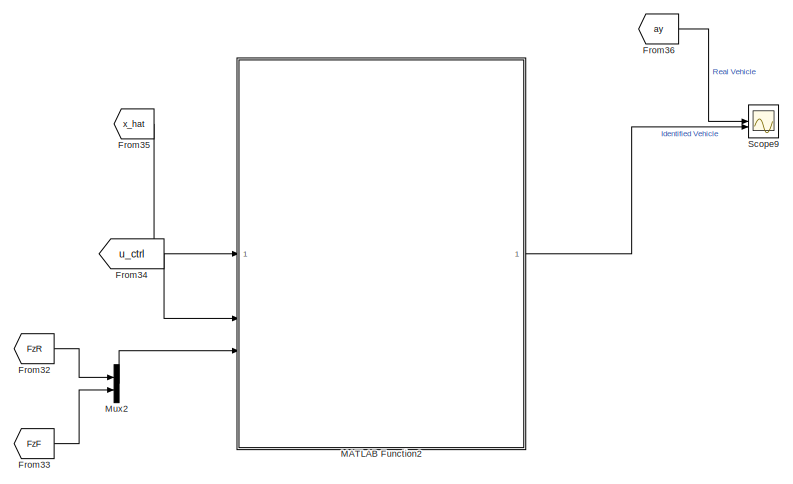
[diagram: root canvas - part 1/8, top center region]
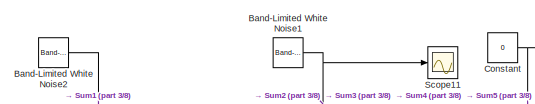
[diagram: root canvas - part 2/8, top right region]
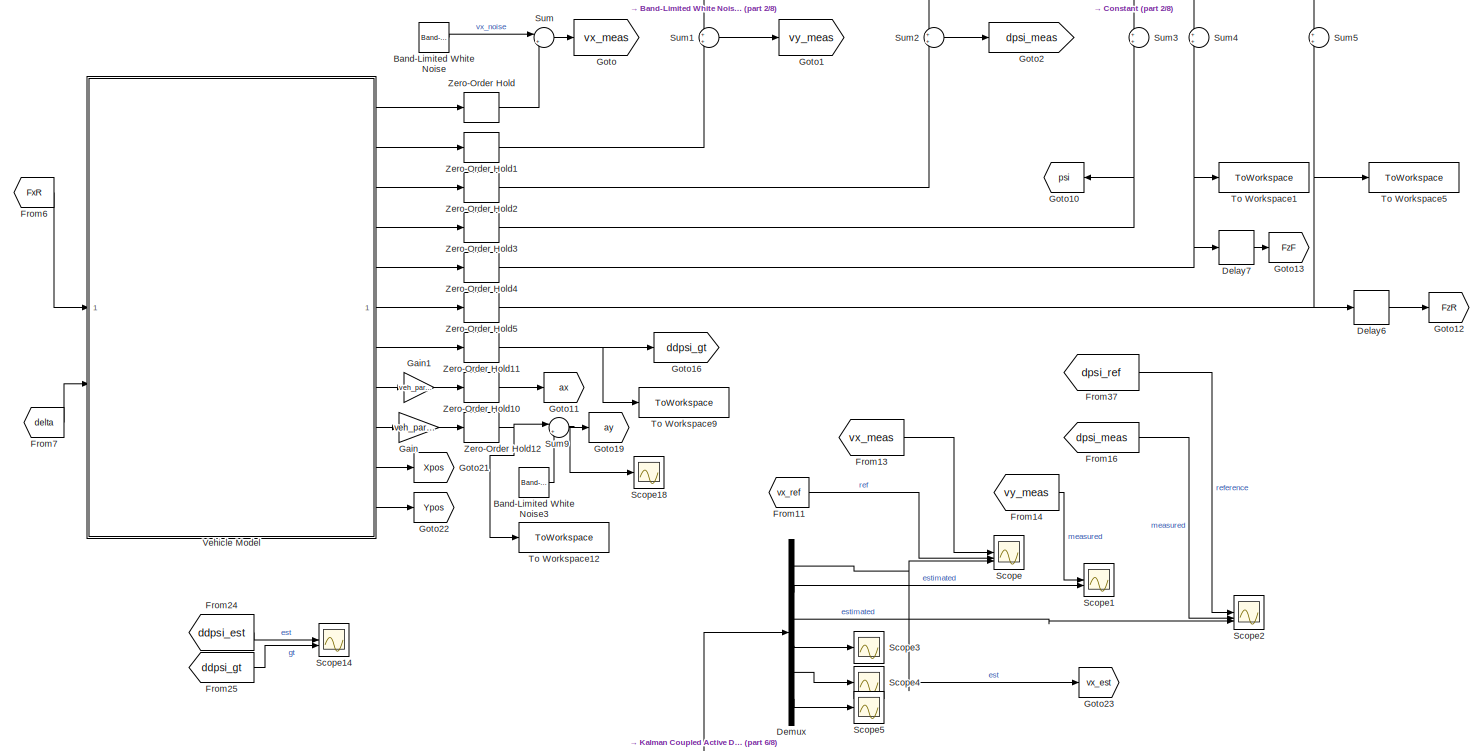
[diagram: root canvas - part 3/8, middle right region]
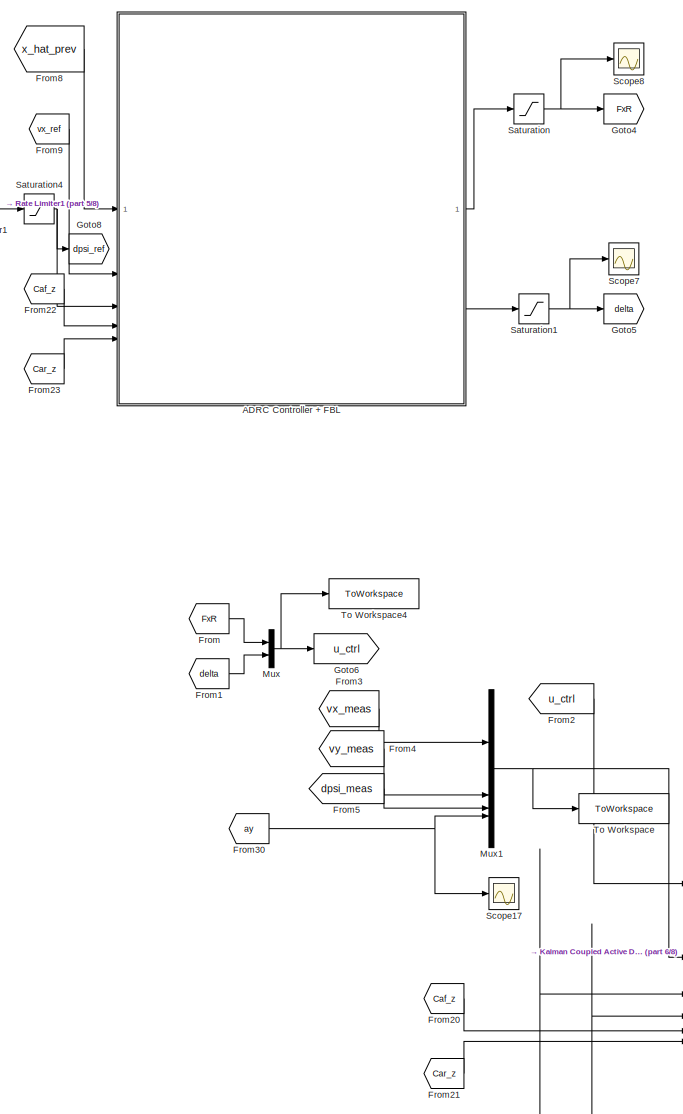
[diagram: root canvas - part 4/8, central region]
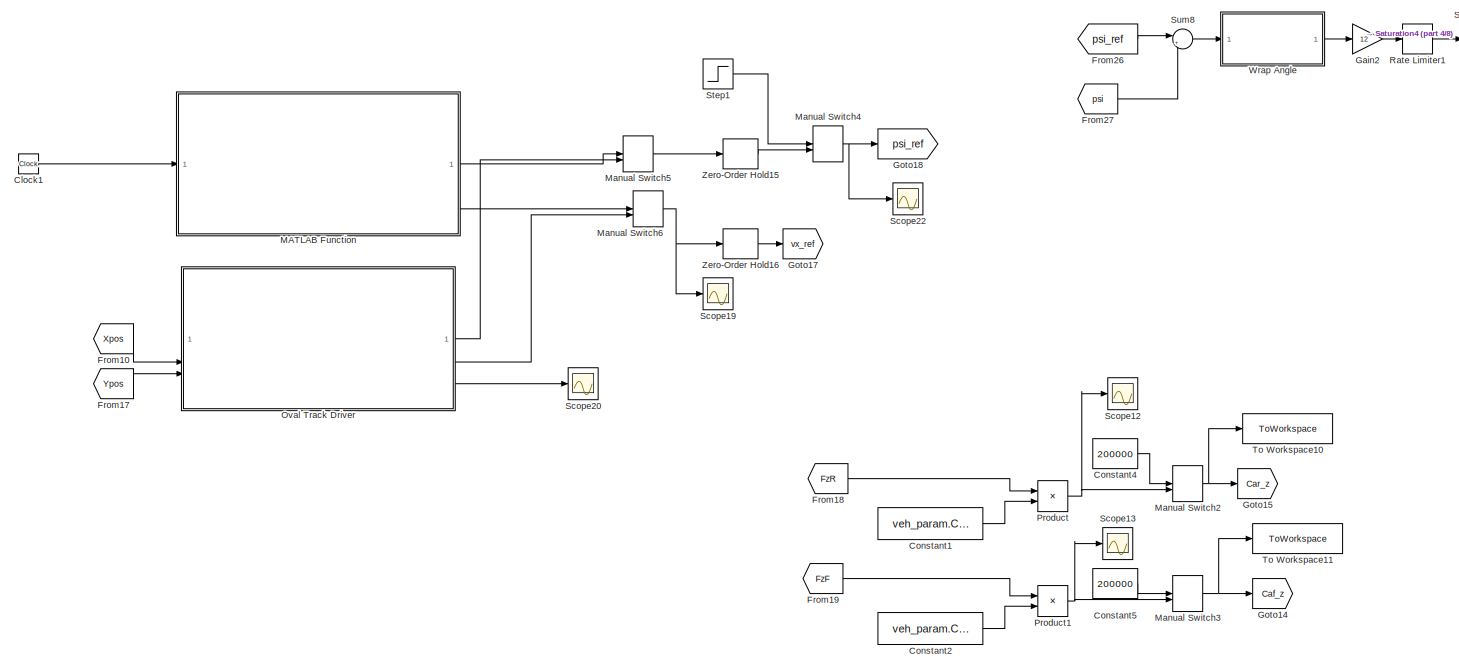
[diagram: root canvas - part 5/8, middle left region]
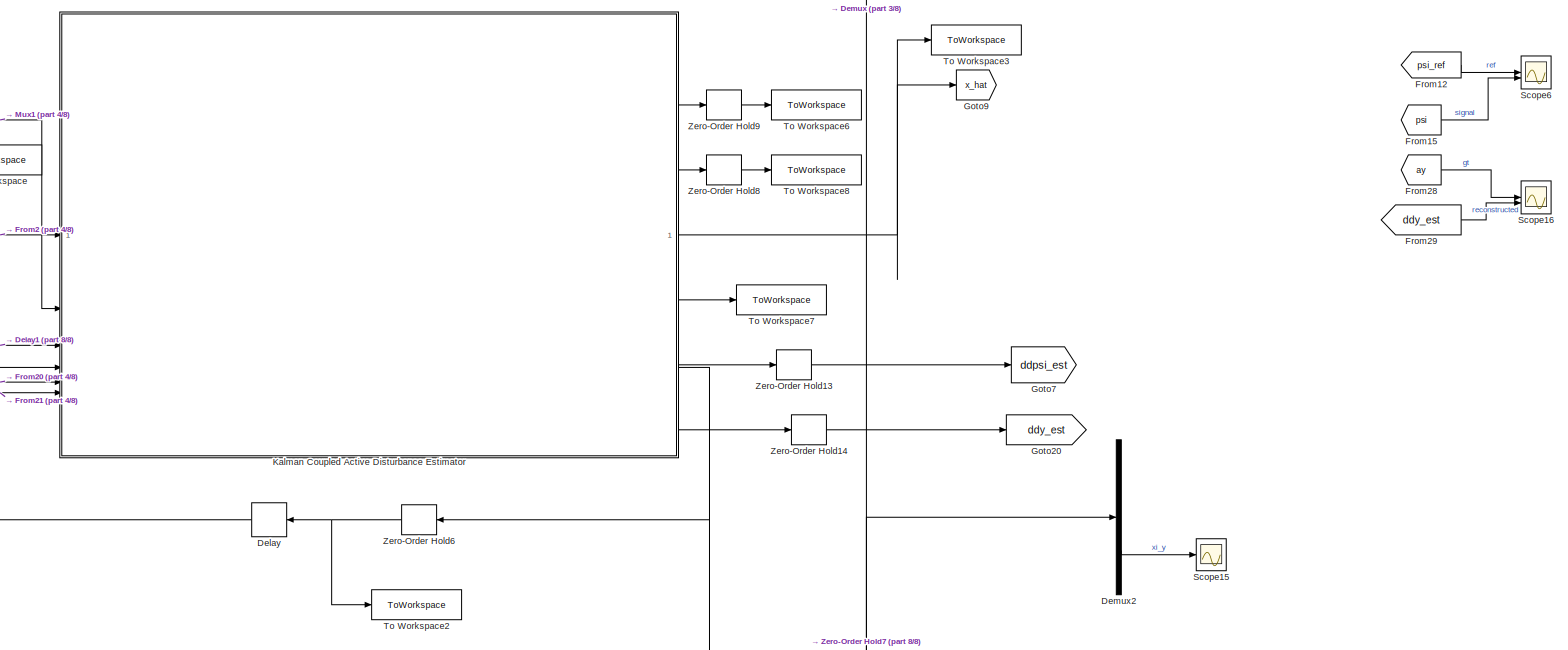
[diagram: root canvas - part 6/8, bottom right region]
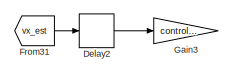
[diagram: root canvas - part 7/8, bottom left region]
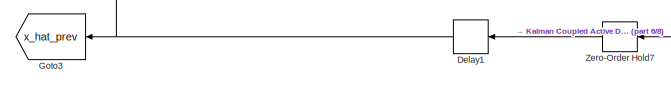
[diagram: root canvas - part 8/8, bottom center region]
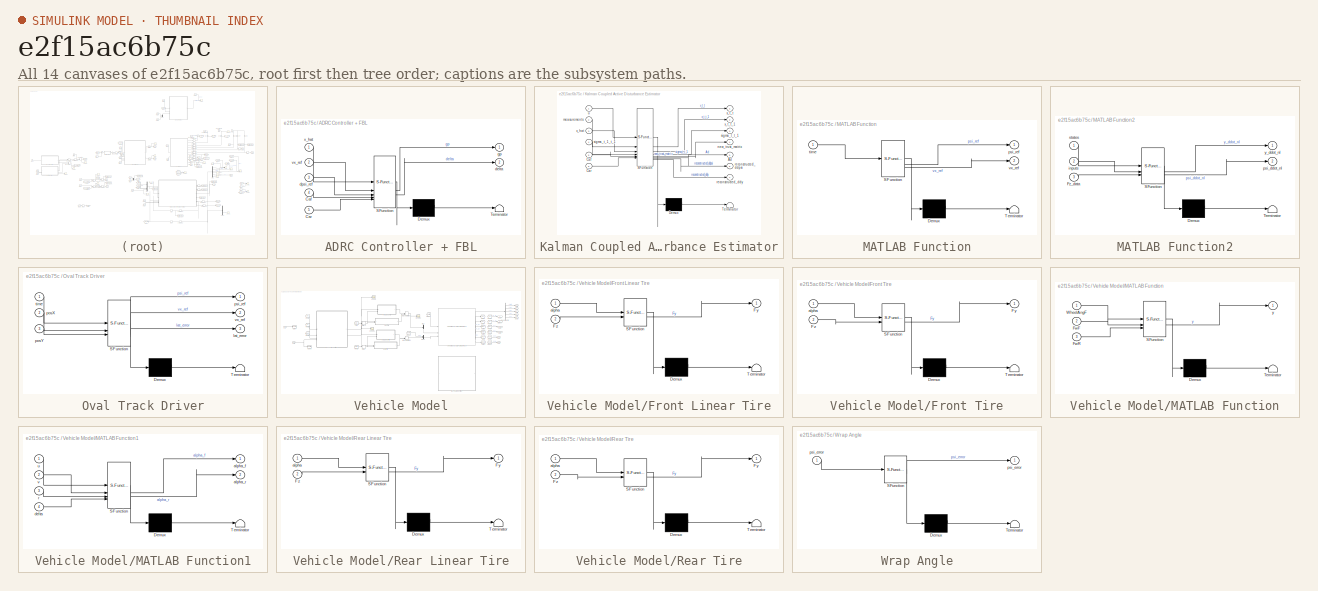
[diagram: thumbnail index - all 14 canvases of the model, root first then tree order]
MODEL slx_e2f15ac6b75c
KIND model
CONFIG AbsTol = auto
CONFIG EnableMultiTasking = off
CONFIG FixedStep = 0.01
CONFIG MaxStep = auto
CONFIG MinStep = auto
CONFIG RelTol = 1e-3
CONFIG SampleTimeConstraint = Unconstrained
CONFIG SolverName = ode4
CONFIG StartTime = 0.0
CONFIG StopTime = 145
BLOCK [SubSystem] ADRC Controller + FBL
  ErrorFcn = Stateflow.Translate.translate
  PermitHierarchicalResolution = ExplicitOnly
  SFBlockType = MATLAB Function
  TreatAsAtomicUnit = on
BLOCK [Demux] ADRC Controller + FBL/ Demux 
  Outputs = 1
BLOCK [S-Function] ADRC Controller + FBL/ SFunction 
  EnableBusSupport = on
  FunctionName = sf_sfun
  Parameters = control_param,veh_param
  PortCounts = [5 3]
  SFcnIsStateOwnerBlock = off
  SFunctionDeploymentMode = off
  Tag = Stateflow S-Function 5
BLOCK [Terminator] ADRC Controller + FBL/ Terminator 
BLOCK [Inport] ADRC Controller + FBL/Caf
  Port = 4
BLOCK [Inport] ADRC Controller + FBL/Car
  Port = 5
BLOCK [Outport] ADRC Controller + FBL/delta
  Port = 2
BLOCK [Inport] ADRC Controller + FBL/dpsi_ref
  Port = 3
BLOCK [Outport] ADRC Controller + FBL/gp
BLOCK [Inport] ADRC Controller + FBL/vx_ref
  Port = 2
BLOCK [Inport] ADRC Controller + FBL/x_hat
BLOCK [Reference] Band-Limited White Noise  REF=simulink/Sources/Band-Limited
White Noise
  SourceBlock = simulink/Sources/Band-Limited\nWhite Noise
  SourceType = Band-Limited White Noise.
BLOCK [Reference] Band-Limited White Noise1  REF=simulink/Sources/Band-Limited
White Noise
  SourceBlock = simulink/Sources/Band-Limited\nWhite Noise
  SourceType = Band-Limited White Noise.
BLOCK [Reference] Band-Limited White Noise2  REF=simulink/Sources/Band-Limited
White Noise
  SourceBlock = simulink/Sources/Band-Limited\nWhite Noise
  SourceType = Band-Limited White Noise.
BLOCK [Reference] Band-Limited White Noise3  REF=simulink/Sources/Band-Limited
White Noise
  SourceBlock = simulink/Sources/Band-Limited\nWhite Noise
  SourceType = Band-Limited White Noise.
BLOCK [Clock] Clock1
BLOCK [Constant] Constant
  Value = 0
BLOCK [Constant] Constant1
  SampleTime = control_param.T
  Value = veh_param.Car
BLOCK [Constant] Constant2
  SampleTime = control_param.T
  Value = veh_param.Caf
BLOCK [Constant] Constant4
  Value = 200000
BLOCK [Constant] Constant5
  Value = 200000
BLOCK [Delay] Delay
  DelayLength = 1
  InitialCondition = eye(6)*0
  InputPortMap = u0
  SampleTime = control_param.T
BLOCK [Delay] Delay1
  DelayLength = 1
  InitialCondition = veh_param.initial_states
  InputPortMap = u0
  SampleTime = control_param.T
BLOCK [Delay] Delay2
  Commented = on
  DelayLength = 1
  InputPortMap = u0
  SampleTime = control_param.T
BLOCK [Delay] Delay6
  DelayLength = 1
  InitialCondition = veh_param.initial_states(1)
  InputPortMap = u0
  SampleTime = control_param.T
BLOCK [Delay] Delay7
  DelayLength = 1
  InitialCondition = veh_param.initial_states(1)
  InputPortMap = u0
  SampleTime = control_param.T
BLOCK [Demux] Demux
  Outputs = 6
BLOCK [Demux] Demux2
  Outputs = 6
BLOCK [From] From
  GotoTag = FxR
BLOCK [From] From1
  GotoTag = delta
BLOCK [From] From10
  GotoTag = Xpos
BLOCK [From] From11
  GotoTag = vx_ref
BLOCK [From] From12
  GotoTag = psi_ref
BLOCK [From] From13
  GotoTag = vx_meas
BLOCK [From] From14
  GotoTag = vy_meas
BLOCK [From] From15
  GotoTag = psi
BLOCK [From] From16
  GotoTag = dpsi_meas
BLOCK [From] From17
  GotoTag = Ypos
BLOCK [From] From18
  GotoTag = FzR
BLOCK [From] From19
  GotoTag = FzF
BLOCK [From] From2
  GotoTag = u_ctrl
BLOCK [From] From20
  GotoTag = Caf_z
BLOCK [From] From21
  GotoTag = Car_z
BLOCK [From] From22
  GotoTag = Caf_z
BLOCK [From] From23
  GotoTag = Car_z
BLOCK [From] From24
  GotoTag = ddpsi_est
BLOCK [From] From25
  GotoTag = ddpsi_gt
BLOCK [From] From26
  GotoTag = psi_ref
BLOCK [From] From27
  GotoTag = psi
BLOCK [From] From28
  GotoTag = ay
BLOCK [From] From29
  GotoTag = ddy_est
BLOCK [From] From3
  GotoTag = vx_meas
BLOCK [From] From30
  GotoTag = ay
BLOCK [From] From31
  Commented = on
  GotoTag = vx_est
BLOCK [From] From32
  Commented = on
  GotoTag = FzR
BLOCK [From] From33
  Commented = on
  GotoTag = FzF
BLOCK [From] From34
  Commented = on
  GotoTag = u_ctrl
BLOCK [From] From35
  Commented = on
  GotoTag = x_hat
BLOCK [From] From36
  Commented = on
  GotoTag = ay
BLOCK [From] From37
  GotoTag = dpsi_ref
BLOCK [From] From4
  GotoTag = vy_meas
BLOCK [From] From5
  GotoTag = dpsi_meas
BLOCK [From] From6
  GotoTag = FxR
BLOCK [From] From7
  GotoTag = delta
BLOCK [From] From8
  GotoTag = x_hat_prev
BLOCK [From] From9
  GotoTag = vx_ref
BLOCK [Gain] Gain
  Gain = veh_param.g
BLOCK [Gain] Gain1
  Gain = veh_param.g
BLOCK [Gain] Gain2
  Gain = 12
BLOCK [Gain] Gain3
  Commented = on
  Gain = control_param.lookahead_distance
BLOCK [Goto] Goto
  GotoTag = vx_meas
BLOCK [Goto] Goto1
  GotoTag = vy_meas
BLOCK [Goto] Goto10
  GotoTag = psi
BLOCK [Goto] Goto11
  GotoTag = ax
BLOCK [Goto] Goto12
  GotoTag = FzR
BLOCK [Goto] Goto13
  GotoTag = FzF
BLOCK [Goto] Goto14
  GotoTag = Caf_z
BLOCK [Goto] Goto15
  GotoTag = Car_z
BLOCK [Goto] Goto16
  GotoTag = ddpsi_gt
BLOCK [Goto] Goto17
  GotoTag = vx_ref
BLOCK [Goto] Goto18
  GotoTag = psi_ref
BLOCK [Goto] Goto19
  GotoTag = ay
BLOCK [Goto] Goto2
  GotoTag = dpsi_meas
BLOCK [Goto] Goto20
  GotoTag = ddy_est
BLOCK [Goto] Goto21
  GotoTag = Xpos
BLOCK [Goto] Goto22
  GotoTag = Ypos
BLOCK [Goto] Goto23
  GotoTag = vx_est
BLOCK [Goto] Goto3
  GotoTag = x_hat_prev
BLOCK [Goto] Goto4
  GotoTag = FxR
BLOCK [Goto] Goto5
  GotoTag = delta
BLOCK [Goto] Goto6
  GotoTag = u_ctrl
BLOCK [Goto] Goto7
  GotoTag = ddpsi_est
BLOCK [Goto] Goto8
  GotoTag = dpsi_ref
BLOCK [Goto] Goto9
  GotoTag = x_hat
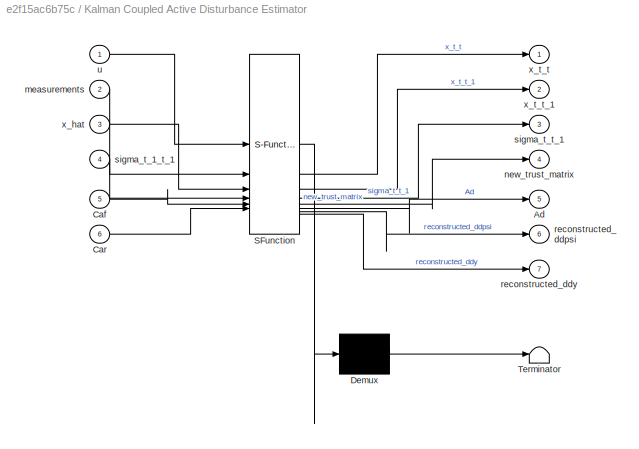
BLOCK [SubSystem] Kalman Coupled Active Disturbance Estimator
  ErrorFcn = Stateflow.Translate.translate
  PermitHierarchicalResolution = ExplicitOnly
  SFBlockType = MATLAB Function
  TreatAsAtomicUnit = on
BLOCK [Demux] Kalman Coupled Active Disturbance Estimator/ Demux 
  Outputs = 1
BLOCK [S-Function] Kalman Coupled Active Disturbance Estimator/ SFunction 
  EnableBusSupport = on
  FunctionName = sf_sfun
  Parameters = control_param,veh_param
  PortCounts = [6 8]
  SFcnIsStateOwnerBlock = off
  SFunctionDeploymentMode = off
  Tag = Stateflow S-Function 7
BLOCK [Terminator] Kalman Coupled Active Disturbance Estimator/ Terminator 
BLOCK [Outport] Kalman Coupled Active Disturbance Estimator/Ad
  Port = 5
BLOCK [Inport] Kalman Coupled Active Disturbance Estimator/Caf
  Port = 5
BLOCK [Inport] Kalman Coupled Active Disturbance Estimator/Car
  Port = 6
BLOCK [Inport] Kalman Coupled Active Disturbance Estimator/measurements
  Port = 2
BLOCK [Outport] Kalman Coupled Active Disturbance Estimator/new_trust_matrix
  Port = 4
BLOCK [Outport] Kalman Coupled Active Disturbance Estimator/reconstructed_ddpsi
  Port = 6
BLOCK [Outport] Kalman Coupled Active Disturbance Estimator/reconstructed_ddy
  Port = 7
BLOCK [Inport] Kalman Coupled Active Disturbance Estimator/sigma_t_1_t_1
  Port = 4
BLOCK [Outport] Kalman Coupled Active Disturbance Estimator/sigma_t_t_1
  Port = 3
BLOCK [Inport] Kalman Coupled Active Disturbance Estimator/u
BLOCK [Inport] Kalman Coupled Active Disturbance Estimator/x_hat
  Port = 3
BLOCK [Outport] Kalman Coupled Active Disturbance Estimator/x_t_t
BLOCK [Outport] Kalman Coupled Active Disturbance Estimator/x_t_t_1
  Port = 2
BLOCK [SubSystem] MATLAB Function
  ErrorFcn = Stateflow.Translate.translate
  PermitHierarchicalResolution = ExplicitOnly
  SFBlockType = MATLAB Function
  TreatAsAtomicUnit = on
BLOCK [Demux] MATLAB Function/ Demux 
  Outputs = 1
BLOCK [S-Function] MATLAB Function/ SFunction 
  EnableBusSupport = on
  FunctionName = sf_sfun
  PortCounts = [1 3]
  SFcnIsStateOwnerBlock = off
  SFunctionDeploymentMode = off
  Tag = Stateflow S-Function 2
BLOCK [Terminator] MATLAB Function/ Terminator 
BLOCK [Outport] MATLAB Function/psi_ref
BLOCK [Inport] MATLAB Function/time
BLOCK [Outport] MATLAB Function/vx_ref
  Port = 2
BLOCK [SubSystem] MATLAB Function2
  Commented = on
  ErrorFcn = Stateflow.Translate.translate
  PermitHierarchicalResolution = ExplicitOnly
  SFBlockType = MATLAB Function
  TreatAsAtomicUnit = on
BLOCK [Demux] MATLAB Function2/ Demux 
  Outputs = 1
BLOCK [S-Function] MATLAB Function2/ SFunction 
  EnableBusSupport = on
  FunctionName = sf_sfun
  Parameters = theta_test,veh_param
  PortCounts = [3 3]
  SFcnIsStateOwnerBlock = off
  SFunctionDeploymentMode = off
  Tag = Stateflow S-Function 1
BLOCK [Terminator] MATLAB Function2/ Terminator 
BLOCK [Inport] MATLAB Function2/Fz_data
  Port = 3
BLOCK [Inport] MATLAB Function2/inputs
  Port = 2
BLOCK [Outport] MATLAB Function2/psi_ddot_nl
  Port = 2
BLOCK [Inport] MATLAB Function2/states
BLOCK [Outport] MATLAB Function2/y_ddot_nl
BLOCK [ManualSwitch] Manual Switch2
  CurrentSetting = 0
BLOCK [ManualSwitch] Manual Switch3
  CurrentSetting = 0
BLOCK [ManualSwitch] Manual Switch4
  CurrentSetting = 0
BLOCK [ManualSwitch] Manual Switch5
  CurrentSetting = 0
BLOCK [ManualSwitch] Manual Switch6
  CurrentSetting = 0
BLOCK [Mux] Mux
  DisplayOption = bar
  Inputs = 2
BLOCK [Mux] Mux1
  DisplayOption = bar
BLOCK [Mux] Mux2
  Commented = on
  DisplayOption = bar
  Inputs = 2
BLOCK [SubSystem] Oval Track Driver
  ErrorFcn = Stateflow.Translate.translate
  PermitHierarchicalResolution = ExplicitOnly
  SFBlockType = MATLAB Function
  TreatAsAtomicUnit = on
BLOCK [Demux] Oval Track Driver/ Demux 
  Outputs = 1
BLOCK [S-Function] Oval Track Driver/ SFunction 
  EnableBusSupport = on
  FunctionName = sf_sfun
  Parameters = track
  PortCounts = [3 4]
  SFcnIsStateOwnerBlock = off
  SFunctionDeploymentMode = off
  Tag = Stateflow S-Function 6
BLOCK [Terminator] Oval Track Driver/ Terminator 
BLOCK [Outport] Oval Track Driver/lat_error
  Port = 3
BLOCK [Inport] Oval Track Driver/posX
  Port = 2
BLOCK [Inport] Oval Track Driver/posY
  Port = 3
BLOCK [Outport] Oval Track Driver/psi_ref
BLOCK [Inport] Oval Track Driver/time
BLOCK [Outport] Oval Track Driver/vx_ref
  Port = 2
BLOCK [Product] Product
BLOCK [Product] Product1
BLOCK [RateLimiter] Rate Limiter1
  FallingSlewLimit = -1.0
  RisingSlewLimit = 1.0
  SampleTimeMode = inherited
BLOCK [Saturate] Saturation
  LowerLimit = -4000
  UpperLimit = 2000
BLOCK [Saturate] Saturation1
  LowerLimit = -0.262
  UpperLimit = 0.262
BLOCK [Saturate] Saturation4
  LowerLimit = -0.3
  UpperLimit = 0.3
BLOCK [Scope] Scope
  Floating = off
  NumInputPorts = 3
  ScopeSpecificationString = Simulink.scopes.TimeScopeBlockCfg('CurrentConfiguration', extmgr.ConfigurationSet(extmgr.Configuration('Core','General UI',true,'FigureColor',[1 1 1]),extmgr.Configuration('Core','Source UI',true),extmgr.Configuration('Sources','WiredSimulink',true),extmgr.Configuration('Visuals','Time Domain',true,'SerializedDisplays',{struct('MinYLimReal','-4.41405','MaxYLimReal','89.37934','YLabelReal','','MinY...<+1578ch>
BLOCK [Scope] Scope1
  Floating = off
  NumInputPorts = 2
  ScopeSpecificationString = Simulink.scopes.TimeScopeBlockCfg('CurrentConfiguration', extmgr.ConfigurationSet(extmgr.Configuration('Core','General UI',true),extmgr.Configuration('Core','Source UI',true),extmgr.Configuration('Sources','WiredSimulink',true,'DataLoggingVariableName','ScopeData1'),extmgr.Configuration('Visuals','Time Domain',true,'SerializedDisplays',{struct('MinYLimReal','-0.62337','MaxYLimReal','0.58648','YLab...<+1583ch>
BLOCK [Scope] Scope11
  Floating = off
  NumInputPorts = 1
  ScopeSpecificationString = Simulink.scopes.TimeScopeBlockCfg('CurrentConfiguration', extmgr.ConfigurationSet(extmgr.Configuration('Core','General UI',true),extmgr.Configuration('Core','Source UI',true),extmgr.Configuration('Sources','WiredSimulink',true,'DataLoggingVariableName','ScopeData6'),extmgr.Configuration('Visuals','Time Domain',true,'SerializedDisplays',{struct('MinYLimReal','-0.01705','MaxYLimReal','0.01595','YLab...<+1501ch>
BLOCK [Scope] Scope12
  Floating = off
  NumInputPorts = 1
  ScopeSpecificationString = Simulink.scopes.TimeScopeBlockCfg('CurrentConfiguration', extmgr.ConfigurationSet(extmgr.Configuration('Core','General UI',true),extmgr.Configuration('Core','Source UI',true),extmgr.Configuration('Sources','WiredSimulink',true,'DataLoggingVariableName','ScopeData7'),extmgr.Configuration('Visuals','Time Domain',true,'SerializedDisplays',{struct('MinYLimReal','-14617.76947','MaxYLimReal','134709.925...<+1537ch>
BLOCK [Scope] Scope13
  Floating = off
  NumInputPorts = 1
  ScopeSpecificationString = Simulink.scopes.TimeScopeBlockCfg('CurrentConfiguration', extmgr.ConfigurationSet(extmgr.Configuration('Core','General UI',true),extmgr.Configuration('Core','Source UI',true),extmgr.Configuration('Sources','WiredSimulink',true,'DataLoggingVariableName','ScopeData8'),extmgr.Configuration('Visuals','Time Domain',true,'SerializedDisplays',{struct('MinYLimReal','117114.57508','MaxYLimReal','151127.324...<+1563ch>
BLOCK [Scope] Scope14
  Floating = off
  NumInputPorts = 2
  ScopeSpecificationString = Simulink.scopes.TimeScopeBlockCfg('CurrentConfiguration', extmgr.ConfigurationSet(extmgr.Configuration('Core','General UI',true),extmgr.Configuration('Core','Source UI',true),extmgr.Configuration('Sources','WiredSimulink',true,'DataLoggingVariableName','ScopeData9'),extmgr.Configuration('Visuals','Time Domain',true,'SerializedDisplays',{struct('MinYLimReal','-0.19154','MaxYLimReal','0.13588','YLab...<+1526ch>
BLOCK [Scope] Scope15
  Floating = off
  NumInputPorts = 1
  ScopeSpecificationString = Simulink.scopes.TimeScopeBlockCfg('CurrentConfiguration', extmgr.ConfigurationSet(extmgr.Configuration('Core','General UI',true),extmgr.Configuration('Core','Source UI',true),extmgr.Configuration('Sources','WiredSimulink',true,'DataLoggingVariableName','ScopeData1'),extmgr.Configuration('Visuals','Time Domain',true,'SerializedDisplays',{struct('MinYLimReal','-10954.24138','MaxYLimReal','9093.53824...<+1552ch>
BLOCK [Scope] Scope16
  Floating = off
  NumInputPorts = 2
  ScopeSpecificationString = Simulink.scopes.TimeScopeBlockCfg('CurrentConfiguration', extmgr.ConfigurationSet(extmgr.Configuration('Core','General UI',true,'FigureColor',[1 1 1]),extmgr.Configuration('Core','Source UI',true),extmgr.Configuration('Sources','WiredSimulink',true,'DataLoggingVariableName','ScopeData3'),extmgr.Configuration('Visuals','Time Domain',true,'SerializedDisplays',{struct('MinYLimReal','-3.52068','MaxYLi...<+1590ch>
BLOCK [Scope] Scope17
  Floating = off
  NumInputPorts = 1
  ScopeSpecificationString = Simulink.scopes.TimeScopeBlockCfg('CurrentConfiguration', extmgr.ConfigurationSet(extmgr.Configuration('Core','General UI',true),extmgr.Configuration('Core','Source UI',true),extmgr.Configuration('Sources','WiredSimulink',true,'DataLoggingVariableName','ScopeData3'),extmgr.Configuration('Visuals','Time Domain',true,'SerializedDisplays',{struct('MinYLimReal','-8.16055','MaxYLimReal','4.89962','YLab...<+1481ch>
BLOCK [Scope] Scope18
  Floating = off
  NumInputPorts = 1
  ScopeSpecificationString = Simulink.scopes.TimeScopeBlockCfg('CurrentConfiguration', extmgr.ConfigurationSet(extmgr.Configuration('Core','General UI',true),extmgr.Configuration('Core','Source UI',true),extmgr.Configuration('Sources','WiredSimulink',true,'DataLoggingVariableName','ScopeData4'),extmgr.Configuration('Visuals','Time Domain',true,'SerializedDisplays',{struct('MinYLimReal','-8.16055','MaxYLimReal','4.89962','YLab...<+1480ch>
BLOCK [Scope] Scope19
  Floating = off
  NumInputPorts = 1
  ScopeSpecificationString = Simulink.scopes.TimeScopeBlockCfg('CurrentConfiguration', extmgr.ConfigurationSet(extmgr.Configuration('Core','General UI',true),extmgr.Configuration('Core','Source UI',true),extmgr.Configuration('Sources','WiredSimulink',true,'DataLoggingVariableName','ScopeData2'),extmgr.Configuration('Visuals','Time Domain',true,'SerializedDisplays',{struct('MinYLimReal','-6.375','MaxYLimReal','67.375','YLabelR...<+1482ch>
BLOCK [Scope] Scope2
  Floating = off
  NumInputPorts = 3
  ScopeSpecificationString = Simulink.scopes.TimeScopeBlockCfg('CurrentConfiguration', extmgr.ConfigurationSet(extmgr.Configuration('Core','General UI',true,'FigureColor',[1 1 1]),extmgr.Configuration('Core','Source UI',true),extmgr.Configuration('Sources','WiredSimulink',true,'DataLoggingVariableName','ScopeData2'),extmgr.Configuration('Visuals','Time Domain',true,'SerializedDisplays',{struct('MinYLimReal','-0.30486','MaxYLi...<+1734ch>
BLOCK [Scope] Scope20
  Floating = off
  NumInputPorts = 1
  ScopeSpecificationString = Simulink.scopes.TimeScopeBlockCfg('CurrentConfiguration', extmgr.ConfigurationSet(extmgr.Configuration('Core','General UI',true),extmgr.Configuration('Core','Source UI',true),extmgr.Configuration('Sources','WiredSimulink',true,'DataLoggingVariableName','ScopeData1'),extmgr.Configuration('Visuals','Time Domain',true,'SerializedDisplays',{struct('MinYLimReal','-0.84345','MaxYLimReal','2.31594','YLab...<+1548ch>
BLOCK [Scope] Scope22
  Floating = off
  NumInputPorts = 1
  ScopeSpecificationString = Simulink.scopes.TimeScopeBlockCfg('CurrentConfiguration', extmgr.ConfigurationSet(extmgr.Configuration('Core','General UI',true),extmgr.Configuration('Core','Source UI',true),extmgr.Configuration('Sources','WiredSimulink',true,'DataLoggingVariableName','ScopeData11'),extmgr.Configuration('Visuals','Time Domain',true,'SerializedDisplays',{struct('MinYLimReal','3.13873','MaxYLimReal','3.14103','YLab...<+1533ch>
BLOCK [Scope] Scope3
  Floating = off
  NumInputPorts = 1
  ScopeSpecificationString = Simulink.scopes.TimeScopeBlockCfg('CurrentConfiguration', extmgr.ConfigurationSet(extmgr.Configuration('Core','General UI',true),extmgr.Configuration('Core','Source UI',true),extmgr.Configuration('Sources','WiredSimulink',true,'DataLoggingVariableName','ScopeData3'),extmgr.Configuration('Visuals','Time Domain',true,'SerializedDisplays',{struct('MinYLimReal','-164.25985','MaxYLimReal','19.14016','Y...<+1496ch>
BLOCK [Scope] Scope4
  Floating = off
  NumInputPorts = 1
  ScopeSpecificationString = Simulink.scopes.TimeScopeBlockCfg('CurrentConfiguration', extmgr.ConfigurationSet(extmgr.Configuration('Core','General UI',true),extmgr.Configuration('Core','Source UI',true),extmgr.Configuration('Sources','WiredSimulink',true,'DataLoggingVariableName','ScopeData4'),extmgr.Configuration('Visuals','Time Domain',true,'SerializedDisplays',{struct('MinYLimReal','-35707.25352','MaxYLimReal','25820.3428...<+1513ch>
BLOCK [Scope] Scope5
  Floating = off
  NumInputPorts = 1
  ScopeSpecificationString = Simulink.scopes.TimeScopeBlockCfg('CurrentConfiguration', extmgr.ConfigurationSet(extmgr.Configuration('Core','General UI',true),extmgr.Configuration('Core','Source UI',true),extmgr.Configuration('Sources','WiredSimulink',true,'DataLoggingVariableName','ScopeData5'),extmgr.Configuration('Visuals','Time Domain',true,'SerializedDisplays',{struct('MinYLimReal','-366.37663','MaxYLimReal','358.60083','...<+1523ch>
BLOCK [Scope] Scope6
  Floating = off
  NumInputPorts = 2
  ScopeSpecificationString = Simulink.scopes.TimeScopeBlockCfg('CurrentConfiguration', extmgr.ConfigurationSet(extmgr.Configuration('Core','General UI',true,'FigureColor',[1 1 1]),extmgr.Configuration('Core','Source UI',true),extmgr.Configuration('Sources','WiredSimulink',true,'DataLoggingVariableName','ScopeData1'),extmgr.Configuration('Visuals','Time Domain',true,'SerializedDisplays',{struct('MinYLimReal','-0.4148','MaxYLim...<+1564ch>
BLOCK [Scope] Scope7
  Floating = off
  NumInputPorts = 1
  ScopeSpecificationString = Simulink.scopes.TimeScopeBlockCfg('CurrentConfiguration', extmgr.ConfigurationSet(extmgr.Configuration('Core','General UI',true,'FigureColor',[1 1 1]),extmgr.Configuration('Core','Source UI',true),extmgr.Configuration('Sources','WiredSimulink',true,'DataLoggingVariableName','ScopeData2'),extmgr.Configuration('Visuals','Time Domain',true,'SerializedDisplays',{struct('MinYLimReal','-0.08631','MaxYLi...<+1588ch>
BLOCK [Scope] Scope8
  Floating = off
  NumInputPorts = 1
  ScopeSpecificationString = Simulink.scopes.TimeScopeBlockCfg('CurrentConfiguration', extmgr.ConfigurationSet(extmgr.Configuration('Core','General UI',true),extmgr.Configuration('Core','Source UI',true),extmgr.Configuration('Sources','WiredSimulink',true,'DataLoggingVariableName','ScopeData3'),extmgr.Configuration('Visuals','Time Domain',true,'SerializedDisplays',{struct('MinYLimReal','-1884.55708','MaxYLimReal','2431.61745'...<+1582ch>
BLOCK [Scope] Scope9
  Commented = on
  Floating = off
  NumInputPorts = 2
  ScopeSpecificationString = Simulink.scopes.TimeScopeBlockCfg('CurrentConfiguration', extmgr.ConfigurationSet(extmgr.Configuration('Core','General UI',true,'FigureColor',[1 1 1]),extmgr.Configuration('Core','Source UI',true),extmgr.Configuration('Sources','WiredSimulink',true,'DataLoggingVariableName','ScopeData1'),extmgr.Configuration('Visuals','Time Domain',true,'SerializedDisplays',{struct('MinYLimReal','-10.87485','MaxYL...<+1726ch>
BLOCK [Step] Step1
  After = 0.05
  SampleTime = control_param.T
  Time = 0
BLOCK [Sum] Sum
  Inputs = |++
BLOCK [Sum] Sum1
BLOCK [Sum] Sum2
BLOCK [Sum] Sum3
BLOCK [Sum] Sum4
BLOCK [Sum] Sum5
BLOCK [Sum] Sum8
  Inputs = |+-
BLOCK [Sum] Sum9
  Inputs = |++
BLOCK [ToWorkspace] To Workspace
  FixptAsFi = on
  MaxDataPoints = inf
  SampleTime = control_param.T
  SaveFormat = Timeseries
  VariableName = measurements
BLOCK [ToWorkspace] To Workspace1
  FixptAsFi = on
  MaxDataPoints = inf
  SampleTime = control_param.T
  SaveFormat = Timeseries
  VariableName = FzF
BLOCK [ToWorkspace] To Workspace10
  FixptAsFi = on
  MaxDataPoints = inf
  SampleTime = control_param.T
  SaveFormat = Timeseries
  VariableName = Car
BLOCK [ToWorkspace] To Workspace11
  FixptAsFi = on
  MaxDataPoints = inf
  SampleTime = control_param.T
  SaveFormat = Timeseries
  VariableName = Caf
BLOCK [ToWorkspace] To Workspace12
  FixptAsFi = on
  MaxDataPoints = inf
  SampleTime = control_param.T
  SaveFormat = Timeseries
  VariableName = gt_ay
BLOCK [ToWorkspace] To Workspace2
  FixptAsFi = on
  MaxDataPoints = inf
  SampleTime = 0.01
  Save2DSignal = 2-D array (concatenate along first dimension)
  SaveFormat = Timeseries
  VariableName = sigma_t_t
BLOCK [ToWorkspace] To Workspace3
  FixptAsFi = on
  MaxDataPoints = inf
  SampleTime = control_param.T
  SaveFormat = Timeseries
  VariableName = x_t_t
BLOCK [ToWorkspace] To Workspace4
  FixptAsFi = on
  MaxDataPoints = inf
  SampleTime = control_param.T
  SaveFormat = Timeseries
  VariableName = u
BLOCK [ToWorkspace] To Workspace5
  FixptAsFi = on
  MaxDataPoints = inf
  SampleTime = control_param.T
  SaveFormat = Timeseries
  VariableName = FzR
BLOCK [ToWorkspace] To Workspace6
  FixptAsFi = on
  MaxDataPoints = inf
  SampleTime = 0.01
  SaveFormat = Timeseries
  VariableName = x_t_t_1
BLOCK [ToWorkspace] To Workspace7
  FixptAsFi = on
  MaxDataPoints = inf
  SampleTime = control_param.T
  SaveFormat = Timeseries
  VariableName = Ad
BLOCK [ToWorkspace] To Workspace8
  FixptAsFi = on
  MaxDataPoints = inf
  SampleTime = 0.01
  Save2DSignal = 2-D array (concatenate along first dimension)
  SaveFormat = Timeseries
  VariableName = sigma_t_t_1
BLOCK [ToWorkspace] To Workspace9
  FixptAsFi = on
  MaxDataPoints = inf
  SampleTime = control_param.T
  SaveFormat = Timeseries
  VariableName = gt_ddpsi
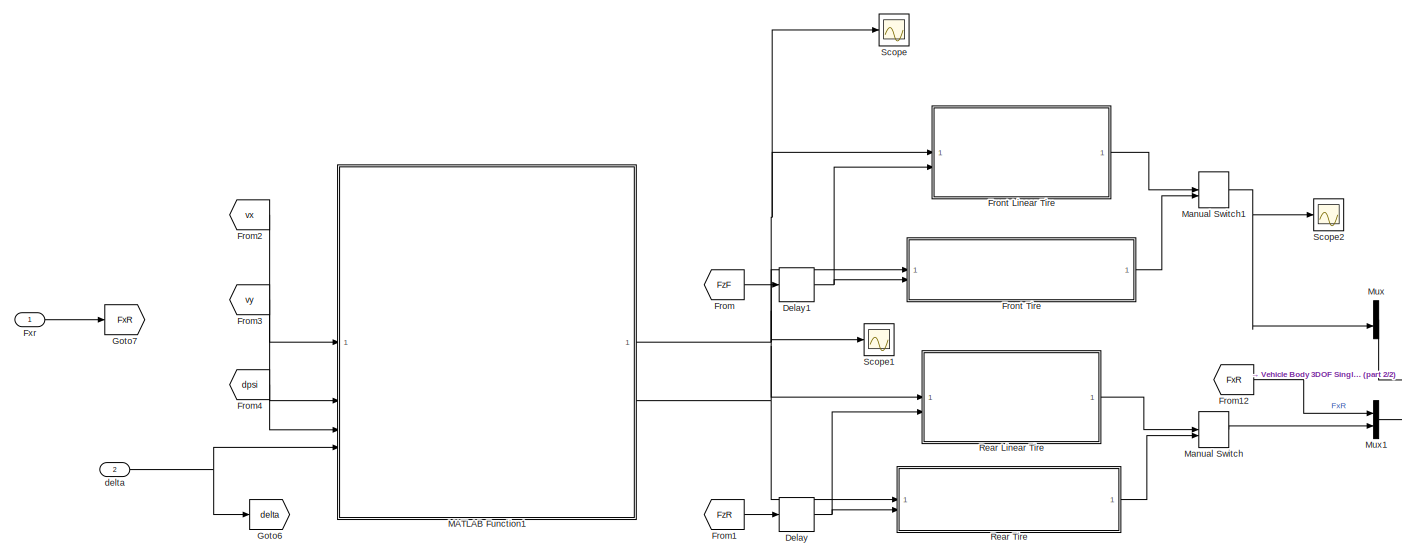
[diagram: Vehicle Model - part 1/2, top left region]
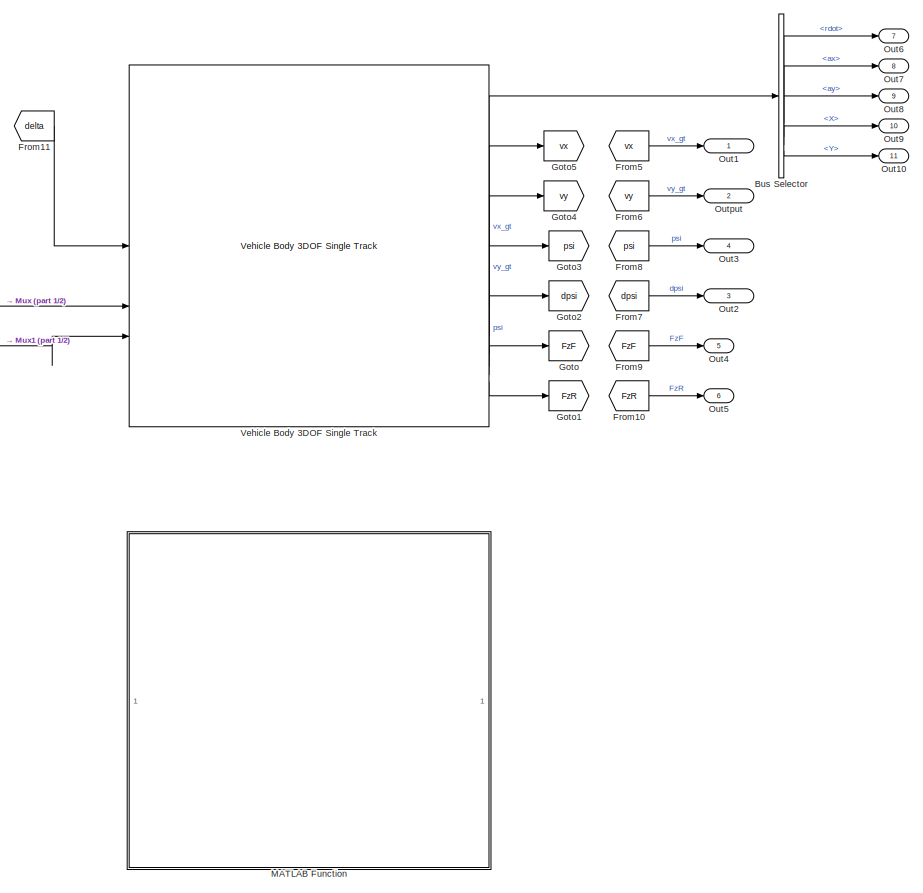
[diagram: Vehicle Model - part 2/2, right side, full height]
BLOCK [SubSystem] Vehicle Model
BLOCK [BusSelector] Vehicle Model/Bus Selector
  OutputSignals = BdyFrm.Cg.AngAcc.rdot,BdyFrm.Cg.Acc.ax,BdyFrm.Cg.Acc.ay,InertFrm.Cg.Disp.X,InertFrm.Cg.Disp.Y
BLOCK [Delay] Vehicle Model/Delay
  DelayLength = 1
  InitialCondition = veh_param.m*veh_param.g / 2
  InputPortMap = u0
  SampleTime = control_param.T
BLOCK [Delay] Vehicle Model/Delay1
  DelayLength = 1
  InitialCondition = veh_param.m*veh_param.g / 2
  InputPortMap = u0
  SampleTime = control_param.T
BLOCK [From] Vehicle Model/From
  GotoTag = FzF
BLOCK [From] Vehicle Model/From1
  GotoTag = FzR
BLOCK [From] Vehicle Model/From10
  GotoTag = FzR
BLOCK [From] Vehicle Model/From11
  GotoTag = delta
BLOCK [From] Vehicle Model/From12
  GotoTag = FxR
BLOCK [From] Vehicle Model/From2
  GotoTag = vx
BLOCK [From] Vehicle Model/From3
  GotoTag = vy
BLOCK [From] Vehicle Model/From4
  GotoTag = dpsi
BLOCK [From] Vehicle Model/From5
  GotoTag = vx
BLOCK [From] Vehicle Model/From6
  GotoTag = vy
BLOCK [From] Vehicle Model/From7
  GotoTag = dpsi
BLOCK [From] Vehicle Model/From8
  GotoTag = psi
BLOCK [From] Vehicle Model/From9
  GotoTag = FzF
BLOCK [SubSystem] Vehicle Model/Front Linear Tire
  ErrorFcn = Stateflow.Translate.translate
  PermitHierarchicalResolution = ExplicitOnly
  SFBlockType = MATLAB Function
  TreatAsAtomicUnit = on
BLOCK [Demux] Vehicle Model/Front Linear Tire/ Demux 
  Outputs = 1
BLOCK [S-Function] Vehicle Model/Front Linear Tire/ SFunction 
  EnableBusSupport = on
  FunctionName = sf_sfun
  Parameters = veh_param
  PortCounts = [2 2]
  SFcnIsStateOwnerBlock = off
  SFunctionDeploymentMode = off
  Tag = Stateflow S-Function 8
BLOCK [Terminator] Vehicle Model/Front Linear Tire/ Terminator 
BLOCK [Outport] Vehicle Model/Front Linear Tire/Fy
BLOCK [Inport] Vehicle Model/Front Linear Tire/Fz
  Port = 2
BLOCK [Inport] Vehicle Model/Front Linear Tire/alpha
BLOCK [SubSystem] Vehicle Model/Front Tire
  ErrorFcn = Stateflow.Translate.translate
  PermitHierarchicalResolution = ExplicitOnly
  SFBlockType = MATLAB Function
  TreatAsAtomicUnit = on
BLOCK [Demux] Vehicle Model/Front Tire/ Demux 
  Outputs = 1
BLOCK [S-Function] Vehicle Model/Front Tire/ SFunction 
  EnableBusSupport = on
  FunctionName = sf_sfun
  Parameters = veh_param
  PortCounts = [2 2]
  SFcnIsStateOwnerBlock = off
  SFunctionDeploymentMode = off
  Tag = Stateflow S-Function 11
BLOCK [Terminator] Vehicle Model/Front Tire/ Terminator 
BLOCK [Outport] Vehicle Model/Front Tire/Fy
BLOCK [Inport] Vehicle Model/Front Tire/Fz
  Port = 2
BLOCK [Inport] Vehicle Model/Front Tire/alpha
BLOCK [Inport] Vehicle Model/Fxr
  IconDisplay = Signal name
BLOCK [Goto] Vehicle Model/Goto
  GotoTag = FzF
BLOCK [Goto] Vehicle Model/Goto1
  GotoTag = FzR
BLOCK [Goto] Vehicle Model/Goto2
  GotoTag = dpsi
BLOCK [Goto] Vehicle Model/Goto3
  GotoTag = psi
BLOCK [Goto] Vehicle Model/Goto4
  GotoTag = vy
BLOCK [Goto] Vehicle Model/Goto5
  GotoTag = vx
BLOCK [Goto] Vehicle Model/Goto6
  GotoTag = delta
BLOCK [Goto] Vehicle Model/Goto7
  GotoTag = FxR
BLOCK [SubSystem] Vehicle Model/MATLAB Function
  Commented = on
  ErrorFcn = Stateflow.Translate.translate
  PermitHierarchicalResolution = ExplicitOnly
  SFBlockType = MATLAB Function
  TreatAsAtomicUnit = on
BLOCK [Demux] Vehicle Model/MATLAB Function/ Demux 
  Outputs = 1
BLOCK [S-Function] Vehicle Model/MATLAB Function/ SFunction 
  EnableBusSupport = on
  FunctionName = sf_sfun
  PortCounts = [3 2]
  SFcnIsStateOwnerBlock = off
  SFunctionDeploymentMode = off
  Tag = Stateflow S-Function 3
BLOCK [Terminator] Vehicle Model/MATLAB Function/ Terminator 
BLOCK [Inport] Vehicle Model/MATLAB Function/FwF
  Port = 2
BLOCK [Inport] Vehicle Model/MATLAB Function/FwR
  Port = 3
BLOCK [Inport] Vehicle Model/MATLAB Function/WheelAngF
BLOCK [Outport] Vehicle Model/MATLAB Function/y
BLOCK [SubSystem] Vehicle Model/MATLAB Function1
  ErrorFcn = Stateflow.Translate.translate
  PermitHierarchicalResolution = ExplicitOnly
  SFBlockType = MATLAB Function
  TreatAsAtomicUnit = on
BLOCK [Demux] Vehicle Model/MATLAB Function1/ Demux 
  Outputs = 1
BLOCK [S-Function] Vehicle Model/MATLAB Function1/ SFunction 
  EnableBusSupport = on
  FunctionName = sf_sfun
  Parameters = veh_param
  PortCounts = [4 3]
  SFcnIsStateOwnerBlock = off
  SFunctionDeploymentMode = off
  Tag = Stateflow S-Function 12
BLOCK [Terminator] Vehicle Model/MATLAB Function1/ Terminator 
BLOCK [Outport] Vehicle Model/MATLAB Function1/alpha_f
BLOCK [Outport] Vehicle Model/MATLAB Function1/alpha_r
  Port = 2
BLOCK [Inport] Vehicle Model/MATLAB Function1/delta
  Port = 4
BLOCK [Inport] Vehicle Model/MATLAB Function1/r
  Port = 3
BLOCK [Inport] Vehicle Model/MATLAB Function1/u
BLOCK [Inport] Vehicle Model/MATLAB Function1/v
  Port = 2
BLOCK [ManualSwitch] Vehicle Model/Manual Switch
  CurrentSetting = 0
BLOCK [ManualSwitch] Vehicle Model/Manual Switch1
  CurrentSetting = 0
BLOCK [Mux] Vehicle Model/Mux
  DisplayOption = bar
  Inputs = 2
BLOCK [Mux] Vehicle Model/Mux1
  DisplayOption = bar
  Inputs = 2
BLOCK [Outport] Vehicle Model/Out1
  IconDisplay = Signal name
BLOCK [Outport] Vehicle Model/Out10
  IconDisplay = Signal name
  Port = 11
BLOCK [Outport] Vehicle Model/Out2
  IconDisplay = Signal name
  Port = 3
BLOCK [Outport] Vehicle Model/Out3
  IconDisplay = Signal name
  Port = 4
BLOCK [Outport] Vehicle Model/Out4
  IconDisplay = Signal name
  Port = 5
BLOCK [Outport] Vehicle Model/Out5
  IconDisplay = Signal name
  Port = 6
BLOCK [Outport] Vehicle Model/Out6
  IconDisplay = Signal name
  Port = 7
BLOCK [Outport] Vehicle Model/Out7
  IconDisplay = Signal name
  Port = 8
BLOCK [Outport] Vehicle Model/Out8
  IconDisplay = Signal name
  Port = 9
BLOCK [Outport] Vehicle Model/Out9
  IconDisplay = Signal name
  Port = 10
BLOCK [Outport] Vehicle Model/Output
  IconDisplay = Signal name
  Port = 2
BLOCK [SubSystem] Vehicle Model/Rear Linear Tire
  ErrorFcn = Stateflow.Translate.translate
  PermitHierarchicalResolution = ExplicitOnly
  SFBlockType = MATLAB Function
  TreatAsAtomicUnit = on
BLOCK [Demux] Vehicle Model/Rear Linear Tire/ Demux 
  Outputs = 1
BLOCK [S-Function] Vehicle Model/Rear Linear Tire/ SFunction 
  EnableBusSupport = on
  FunctionName = sf_sfun
  Parameters = veh_param
  PortCounts = [2 2]
  SFcnIsStateOwnerBlock = off
  SFunctionDeploymentMode = off
  Tag = Stateflow S-Function 13
BLOCK [Terminator] Vehicle Model/Rear Linear Tire/ Terminator 
BLOCK [Outport] Vehicle Model/Rear Linear Tire/Fy
BLOCK [Inport] Vehicle Model/Rear Linear Tire/Fz
  Port = 2
BLOCK [Inport] Vehicle Model/Rear Linear Tire/alpha
BLOCK [SubSystem] Vehicle Model/Rear Tire
  ErrorFcn = Stateflow.Translate.translate
  PermitHierarchicalResolution = ExplicitOnly
  SFBlockType = MATLAB Function
  TreatAsAtomicUnit = on
BLOCK [Demux] Vehicle Model/Rear Tire/ Demux 
  Outputs = 1
BLOCK [S-Function] Vehicle Model/Rear Tire/ SFunction 
  EnableBusSupport = on
  FunctionName = sf_sfun
  Parameters = veh_param
  PortCounts = [2 2]
  SFcnIsStateOwnerBlock = off
  SFunctionDeploymentMode = off
  Tag = Stateflow S-Function 14
BLOCK [Terminator] Vehicle Model/Rear Tire/ Terminator 
BLOCK [Outport] Vehicle Model/Rear Tire/Fy
BLOCK [Inport] Vehicle Model/Rear Tire/Fz
  Port = 2
BLOCK [Inport] Vehicle Model/Rear Tire/alpha
BLOCK [Scope] Vehicle Model/Scope
  Floating = off
  NumInputPorts = 1
  ScopeSpecificationString = Simulink.scopes.TimeScopeBlockCfg('CurrentConfiguration', extmgr.ConfigurationSet(extmgr.Configuration('Core','General UI',true),extmgr.Configuration('Core','Source UI',true),extmgr.Configuration('Sources','WiredSimulink',true,'DataLoggingVariableName','ScopeData1'),extmgr.Configuration('Visuals','Time Domain',true,'SerializedDisplays',{struct('MinYLimReal','-0.00984','MaxYLimReal','0.00753','YLab...<+1544ch>
BLOCK [Scope] Vehicle Model/Scope1
  Floating = off
  NumInputPorts = 1
  ScopeSpecificationString = Simulink.scopes.TimeScopeBlockCfg('CurrentConfiguration', extmgr.ConfigurationSet(extmgr.Configuration('Core','General UI',true),extmgr.Configuration('Core','Source UI',true),extmgr.Configuration('Sources','WiredSimulink',true,'DataLoggingVariableName','ScopeData2'),extmgr.Configuration('Visuals','Time Domain',true,'SerializedDisplays',{struct('MinYLimReal','-0.01134','MaxYLimReal','0.01128','YLab...<+1501ch>
BLOCK [Scope] Vehicle Model/Scope2
  Floating = off
  NumInputPorts = 1
  ScopeSpecificationString = Simulink.scopes.TimeScopeBlockCfg('CurrentConfiguration', extmgr.ConfigurationSet(extmgr.Configuration('Core','General UI',true),extmgr.Configuration('Core','Source UI',true),extmgr.Configuration('Sources','WiredSimulink',true,'DataLoggingVariableName','ScopeData1'),extmgr.Configuration('Visuals','Time Domain',true,'SerializedDisplays',{struct('MinYLimReal','-1498.31748','MaxYLimReal','1527.73797'...<+1538ch>
BLOCK [Reference] Vehicle Model/Vehicle Body 3DOF Single Track  REF=autolibshared/Vehicle Body 3DOF Single Track
  LibrarySourceBlock = vehdynlibeom/Vehicle Body 3DOF Single Track
  SourceBlock = autolibshared/Vehicle Body 3DOF Single Track
  SourceType = Vehicle Body 3DOF Lateral
BLOCK [Inport] Vehicle Model/delta
  IconDisplay = Signal name
  Port = 2
BLOCK [SubSystem] Wrap Angle
  ErrorFcn = Stateflow.Translate.translate
  PermitHierarchicalResolution = ExplicitOnly
  SFBlockType = MATLAB Function
  TreatAsAtomicUnit = on
BLOCK [Demux] Wrap Angle/ Demux 
  Outputs = 1
BLOCK [S-Function] Wrap Angle/ SFunction 
  EnableBusSupport = on
  FunctionName = sf_sfun
  PortCounts = [1 2]
  SFcnIsStateOwnerBlock = off
  SFunctionDeploymentMode = off
  Tag = Stateflow S-Function 9
BLOCK [Terminator] Wrap Angle/ Terminator 
BLOCK [Outport] Wrap Angle/psi_error
BLOCK [Inport] Wrap Angle/psi_error 
BLOCK [ZeroOrderHold] Zero-Order Hold
  SampleTime = control_param.T
BLOCK [ZeroOrderHold] Zero-Order Hold1
  SampleTime = control_param.T
BLOCK [ZeroOrderHold] Zero-Order Hold10
  SampleTime = control_param.T
BLOCK [ZeroOrderHold] Zero-Order Hold11
  SampleTime = control_param.T
BLOCK [ZeroOrderHold] Zero-Order Hold12
  SampleTime = control_param.T
BLOCK [ZeroOrderHold] Zero-Order Hold13
  SampleTime = control_param.T
BLOCK [ZeroOrderHold] Zero-Order Hold14
  SampleTime = control_param.T
BLOCK [ZeroOrderHold] Zero-Order Hold15
  SampleTime = control_param.T
BLOCK [ZeroOrderHold] Zero-Order Hold16
  SampleTime = control_param.T
BLOCK [ZeroOrderHold] Zero-Order Hold2
  SampleTime = control_param.T
BLOCK [ZeroOrderHold] Zero-Order Hold3
  SampleTime = control_param.T
BLOCK [ZeroOrderHold] Zero-Order Hold4
  SampleTime = control_param.T
BLOCK [ZeroOrderHold] Zero-Order Hold5
  SampleTime = control_param.T
BLOCK [ZeroOrderHold] Zero-Order Hold6
  SampleTime = control_param.T
BLOCK [ZeroOrderHold] Zero-Order Hold7
  SampleTime = control_param.T
BLOCK [ZeroOrderHold] Zero-Order Hold8
  SampleTime = control_param.T
BLOCK [ZeroOrderHold] Zero-Order Hold9
  SampleTime = control_param.T
LINE ADRC Controller + FBL:1 -> Saturation:1
LINE ADRC Controller + FBL:2 -> Saturation1:1
NET Band-Limited White Noise1:1 -> Scope11:1, Sum2:1
LINE Band-Limited White Noise2:1 -> Sum1:1
LINE Band-Limited White Noise3:1 -> Sum9:2
LINE Band-Limited White Noise:1 -> Sum:1
LINE Clock1:1 -> MATLAB Function:1
LINE Constant1:1 -> Product:2
LINE Constant2:1 -> Product1:2
LINE Constant4:1 -> Manual Switch2:1
LINE Constant5:1 -> Manual Switch3:1
NET Constant:1 -> Sum3:1, Sum4:1, Sum5:1
NET Delay1:1 -> Goto3:1, Kalman Coupled Active Disturbance Estimator:3
LINE Delay2:1 -> Gain3:1
LINE Delay6:1 -> Goto12:1
LINE Delay7:1 -> Goto13:1
LINE Delay:1 -> Kalman Coupled Active Disturbance Estimator:4
LINE Demux2:5 -> Scope15:1
NET Demux:1 -> Goto23:1, Scope:3
LINE Demux:2 -> Scope1:2
LINE Demux:3 -> Scope2:3
LINE Demux:4 -> Scope3:1
LINE Demux:5 -> Scope4:1
LINE Demux:6 -> Scope5:1
LINE From10:1 -> Oval Track Driver:2
LINE From11:1 -> Scope:2
LINE From12:1 -> Scope6:1
LINE From13:1 -> Scope:1
LINE From14:1 -> Scope1:1
LINE From15:1 -> Scope6:2
LINE From16:1 -> Scope2:2
LINE From17:1 -> Oval Track Driver:3
LINE From18:1 -> Product:1
LINE From19:1 -> Product1:1
LINE From1:1 -> Mux:2
LINE From20:1 -> Kalman Coupled Active Disturbance Estimator:5
LINE From21:1 -> Kalman Coupled Active Disturbance Estimator:6
LINE From22:1 -> ADRC Controller + FBL:4
LINE From23:1 -> ADRC Controller + FBL:5
LINE From24:1 -> Scope14:1
LINE From25:1 -> Scope14:2
LINE From26:1 -> Sum8:1
LINE From27:1 -> Sum8:2
LINE From28:1 -> Scope16:1
LINE From29:1 -> Scope16:2
LINE From2:1 -> Kalman Coupled Active Disturbance Estimator:1
NET From30:1 -> Mux1:4, Scope17:1
LINE From31:1 -> Delay2:1
LINE From32:1 -> Mux2:1
LINE From33:1 -> Mux2:2
LINE From34:1 -> MATLAB Function2:2
LINE From35:1 -> MATLAB Function2:1
LINE From36:1 -> Scope9:1
LINE From37:1 -> Scope2:1
LINE From3:1 -> Mux1:1
LINE From4:1 -> Mux1:2
LINE From5:1 -> Mux1:3
LINE From6:1 -> Vehicle Model:1
LINE From7:1 -> Vehicle Model:2
LINE From8:1 -> ADRC Controller + FBL:1
LINE From9:1 -> ADRC Controller + FBL:2
LINE From:1 -> Mux:1
LINE Gain1:1 -> Zero-Order Hold10:1
LINE Gain2:1 -> Rate Limiter1:1
LINE Gain:1 -> Zero-Order Hold12:1
NET Kalman Coupled Active Disturbance Estimator:1 -> Demux2:1, Demux:1, Goto9:1, To Workspace3:1, Zero-Order Hold7:1
LINE Kalman Coupled Active Disturbance Estimator:2 -> Zero-Order Hold9:1
LINE Kalman Coupled Active Disturbance Estimator:3 -> Zero-Order Hold8:1
LINE Kalman Coupled Active Disturbance Estimator:4 -> Zero-Order Hold6:1
LINE Kalman Coupled Active Disturbance Estimator:5 -> To Workspace7:1
LINE Kalman Coupled Active Disturbance Estimator:6 -> Zero-Order Hold13:1
LINE Kalman Coupled Active Disturbance Estimator:7 -> Zero-Order Hold14:1
LINE MATLAB Function2:1 -> Scope9:2
LINE MATLAB Function:1 -> Manual Switch5:1
LINE MATLAB Function:2 -> Manual Switch6:1
NET Manual Switch2:1 -> Goto15:1, To Workspace10:1
NET Manual Switch3:1 -> Goto14:1, To Workspace11:1
NET Manual Switch4:1 -> Goto18:1, Scope22:1
LINE Manual Switch5:1 -> Zero-Order Hold15:1
NET Manual Switch6:1 -> Scope19:1, Zero-Order Hold16:1
NET Mux1:1 -> Kalman Coupled Active Disturbance Estimator:2, To Workspace:1
LINE Mux2:1 -> MATLAB Function2:3
NET Mux:1 -> Goto6:1, To Workspace4:1
LINE Oval Track Driver:1 -> Manual Switch5:2
LINE Oval Track Driver:2 -> Manual Switch6:2
LINE Oval Track Driver:3 -> Scope20:1
NET Product1:1 -> Manual Switch3:2, Scope13:1
NET Product:1 -> Manual Switch2:2, Scope12:1
LINE Rate Limiter1:1 -> Saturation4:1
NET Saturation1:1 -> Goto5:1, Scope7:1
NET Saturation4:1 -> ADRC Controller + FBL:3, Goto8:1
NET Saturation:1 -> Goto4:1, Scope8:1
LINE Step1:1 -> Manual Switch4:1
LINE Sum1:1 -> Goto1:1
LINE Sum2:1 -> Goto2:1
LINE Sum8:1 -> Wrap Angle:1
NET Sum9:1 -> Goto19:1, Scope18:1
LINE Sum:1 -> Goto:1
LINE Vehicle Model/Bus Selector:1 -> Vehicle Model/Out6:1
LINE Vehicle Model/Bus Selector:2 -> Vehicle Model/Out7:1
LINE Vehicle Model/Bus Selector:3 -> Vehicle Model/Out8:1
LINE Vehicle Model/Bus Selector:4 -> Vehicle Model/Out9:1
LINE Vehicle Model/Bus Selector:5 -> Vehicle Model/Out10:1
NET Vehicle Model/Delay1:1 -> Vehicle Model/Front Linear Tire:2, Vehicle Model/Front Tire:2
NET Vehicle Model/Delay:1 -> Vehicle Model/Rear Linear Tire:2, Vehicle Model/Rear Tire:2
LINE Vehicle Model/From10:1 -> Vehicle Model/Out5:1
LINE Vehicle Model/From11:1 -> Vehicle Model/Vehicle Body 3DOF Single Track:1
LINE Vehicle Model/From12:1 -> Vehicle Model/Mux1:1
LINE Vehicle Model/From1:1 -> Vehicle Model/Delay:1
LINE Vehicle Model/From2:1 -> Vehicle Model/MATLAB Function1:1
LINE Vehicle Model/From3:1 -> Vehicle Model/MATLAB Function1:2
LINE Vehicle Model/From4:1 -> Vehicle Model/MATLAB Function1:3
LINE Vehicle Model/From5:1 -> Vehicle Model/Out1:1
LINE Vehicle Model/From6:1 -> Vehicle Model/Output:1
LINE Vehicle Model/From7:1 -> Vehicle Model/Out2:1
LINE Vehicle Model/From8:1 -> Vehicle Model/Out3:1
LINE Vehicle Model/From9:1 -> Vehicle Model/Out4:1
LINE Vehicle Model/From:1 -> Vehicle Model/Delay1:1
LINE Vehicle Model/Front Linear Tire:1 -> Vehicle Model/Manual Switch1:1
LINE Vehicle Model/Front Tire:1 -> Vehicle Model/Manual Switch1:2
LINE Vehicle Model/Fxr:1 -> Vehicle Model/Goto7:1
NET Vehicle Model/MATLAB Function1:1 -> Vehicle Model/Front Linear Tire:1, Vehicle Model/Front Tire:1, Vehicle Model/Scope:1
NET Vehicle Model/MATLAB Function1:2 -> Vehicle Model/Rear Linear Tire:1, Vehicle Model/Rear Tire:1, Vehicle Model/Scope1:1
NET Vehicle Model/Manual Switch1:1 -> Vehicle Model/Mux:2, Vehicle Model/Scope2:1
LINE Vehicle Model/Manual Switch:1 -> Vehicle Model/Mux1:2
LINE Vehicle Model/Mux1:1 -> Vehicle Model/Vehicle Body 3DOF Single Track:3
LINE Vehicle Model/Mux:1 -> Vehicle Model/Vehicle Body 3DOF Single Track:2
LINE Vehicle Model/Rear Linear Tire:1 -> Vehicle Model/Manual Switch:1
LINE Vehicle Model/Rear Tire:1 -> Vehicle Model/Manual Switch:2
LINE Vehicle Model/Vehicle Body 3DOF Single Track:1 -> Vehicle Model/Bus Selector:1
LINE Vehicle Model/Vehicle Body 3DOF Single Track:2 -> Vehicle Model/Goto5:1
LINE Vehicle Model/Vehicle Body 3DOF Single Track:3 -> Vehicle Model/Goto4:1
LINE Vehicle Model/Vehicle Body 3DOF Single Track:4 -> Vehicle Model/Goto3:1
LINE Vehicle Model/Vehicle Body 3DOF Single Track:5 -> Vehicle Model/Goto2:1
LINE Vehicle Model/Vehicle Body 3DOF Single Track:6 -> Vehicle Model/Goto:1
LINE Vehicle Model/Vehicle Body 3DOF Single Track:7 -> Vehicle Model/Goto1:1
NET Vehicle Model/delta:1 -> Vehicle Model/Goto6:1, Vehicle Model/MATLAB Function1:4
LINE Vehicle Model:1 -> Zero-Order Hold:1
LINE Vehicle Model:10 -> Goto21:1
LINE Vehicle Model:11 -> Goto22:1
LINE Vehicle Model:2 -> Zero-Order Hold1:1
LINE Vehicle Model:3 -> Zero-Order Hold2:1
LINE Vehicle Model:4 -> Zero-Order Hold3:1
LINE Vehicle Model:5 -> Zero-Order Hold4:1
LINE Vehicle Model:6 -> Zero-Order Hold5:1
LINE Vehicle Model:7 -> Zero-Order Hold11:1
LINE Vehicle Model:8 -> Gain1:1
LINE Vehicle Model:9 -> Gain:1
LINE Wrap Angle:1 -> Gain2:1
LINE Zero-Order Hold10:1 -> Goto11:1
NET Zero-Order Hold11:1 -> Goto16:1, To Workspace9:1
NET Zero-Order Hold12:1 -> Sum9:1, To Workspace12:1
LINE Zero-Order Hold13:1 -> Goto7:1
LINE Zero-Order Hold14:1 -> Goto20:1
LINE Zero-Order Hold15:1 -> Manual Switch4:2
LINE Zero-Order Hold16:1 -> Goto17:1
LINE Zero-Order Hold1:1 -> Sum1:2
LINE Zero-Order Hold2:1 -> Sum2:2
NET Zero-Order Hold3:1 -> Goto10:1, Sum3:2
NET Zero-Order Hold4:1 -> Delay7:1, Sum4:2, To Workspace1:1
NET Zero-Order Hold5:1 -> Delay6:1, Sum5:2, To Workspace5:1
NET Zero-Order Hold6:1 -> Delay:1, To Workspace2:1
LINE Zero-Order Hold7:1 -> Delay1:1
LINE Zero-Order Hold8:1 -> To Workspace8:1
LINE Zero-Order Hold9:1 -> To Workspace6:1
LINE Zero-Order Hold:1 -> Sum:2
note: NET lines group one-source signal fan-out (src -> all destinations, sorted); 1:1 wires keep LINE
CHART Vehicle Model/Front Linear Tire states=1 transitions=1
  STATE_LABEL 'eML_blk_kernel()'
  STATE_LABEL 'SCRIPT:\nfunction Fy = linear_tire_model(alpha, Fz, veh_param)\n    % Implements a simple LINEAR tire model.\n    %\n    % Fy = C_alpha * alpha\n    \n    B = veh_param.Bf;\n    C = veh_param.Cf;\n    D = veh_param.Df;\n\n    % The linear cornering stiffness (C_alpha) for small angles\n    % is the product of B, C, and D, scaled by Fz.\n    % K is the "cornering stiffness coefficient".\n    K_pacejka = B * C *...<+285ch>'
CHART Wrap Angle states=1 transitions=1
  STATE_LABEL 'eML_blk_kernel()'
  STATE_LABEL 'SCRIPT:\nfunction psi_error  = fcn(psi_error)\n\n    while psi_error > pi\n        psi_error = psi_error - 2*pi;\n    end\n    while psi_error < -pi\n        psi_error = psi_error + 2*pi;\n    end\n    \nend'
CHART Vehicle Model/Front Tire states=1 transitions=1
  STATE_LABEL 'eML_blk_kernel()'
  STATE_LABEL "SCRIPT:\nfunction Fy = simple_pacejka_lat(alpha, Fz, veh_param)\n\n    % Implements the simple Pacejka '89 lateral force model.\n    %\n    % INPUTS:\n    %   alpha:  Tire Slip Angle (radians)\n    %   Fz:     Vertical Load on the tire (Newtons)\n    %\n    % OUTPUT:\n    %   Fy:     Lateral Force (Newtons)\n\n    % TIRE PACEJKA PARAMS:\n    %   B:      Stiffness Factor\n    %   C:      Shape Factor\n    %   D: ...<+730ch>"
CHART Vehicle Model/MATLAB Function1 states=1 transitions=1
  STATE_LABEL 'eML_blk_kernel()'
  STATE_LABEL 'SCRIPT:\nfunction [alpha_f, alpha_r] = calc_bicycle_slip_angles(u, v, r, delta, veh_param)\n% Calculate slip angles at the tires:\n% WARNING: Careful with sign conventions used in the model, make sure you\n% get this right\n\nlf = veh_param.lf;\nlr = veh_param.lr;\n\n\ntheta_v_f = atan2(v + r * lf, u);\n\ntheta_v_r = atan2(v - r * lr, u);\n\n% Front: Steer angle is delta, velocity angle is theta_v_f\nalpha_f = t...<+98ch>'
CHART Vehicle Model/Rear Linear Tire states=1 transitions=1
  STATE_LABEL 'eML_blk_kernel()'
  STATE_LABEL 'SCRIPT:\nfunction Fy = linear_tire_model(alpha, Fz, veh_param)\n    % Implements a simple LINEAR tire model.\n    %\n    % Fy = C_alpha * alpha\n    %\n    % To be a fair comparison to your Pacejka block, we define\n    % C_alpha as the initial slope of the Pacejka curve, which\n    % is load-dependent.\n    \n    % TIRE PACEJKA PARAMS:\n    B = veh_param.Br;\n    C = veh_param.Cr;\n    D = veh_param.Dr;\n    E...<+495ch>'
CHART Vehicle Model/Rear Tire states=1 transitions=1
  STATE_LABEL 'eML_blk_kernel()'
  STATE_LABEL "SCRIPT:\nfunction Fy = simple_pacejka_lat(alpha, Fz, veh_param)\n\n    % Implements the simple Pacejka '89 lateral force model.\n    %\n    % INPUTS:\n    %   alpha:  Tire Slip Angle (radians)\n    %   Fz:     Vertical Load on the tire (Newtons)\n    %\n    % OUTPUT:\n    %   Fy:     Lateral Force (Newtons)\n    \n    % TIRE PACEJKA PARAMS:\n    %   B:      Stiffness Factor\n    %   C:      Shape Factor\n    %  ...<+737ch>"
CHART MATLAB Function2 states=1 transitions=1
  STATE_LABEL 'eML_blk_kernel()'
  STATE_LABEL 'SCRIPT:\n% Validation Model:\n% Here you should load your optimal parameters from the identification for\n% validation.\nfunction [y_ddot_nl, psi_ddot_nl]  = non_linear_identified_model(theta_test, states, inputs, Fz_data, veh_param)\n    % This is the "Physics Whiz" model.\n    % It now uses the Fz-dependent Pacejka formula to match the sim.\n\n    % --- 1. Unpack Parameters (theta) ---\n    Bf = theta_te...<+1820ch>'
CHART MATLAB Function states=1 transitions=1
  STATE_LABEL 'eML_blk_kernel()'
  STATE_LABEL 'SCRIPT:\nfunction [psi_ref, vx_ref] = generate_identification_trajectory(time)\n%#codegen\n% Generates feasible, persistently exciting reference signals for \n% Vehicle System Identification.\n%\n% INPUT:\n%   time: Current simulation time (seconds)\n%\n% OUTPUTS:\n%   psi_ref: Global heading reference (radians)\n%   vx_ref:  Longitudinal velocity reference (m/s) [10 to 40 m/s]\n\n    % --- CONFIGURATION ---\n ...<+1990ch>'
CHART Vehicle Model/MATLAB Function states=1 transitions=1
  STATE_LABEL 'eML_blk_kernel()'
  STATE_LABEL 'SCRIPT:\nfunction y = fcn(WheelAngF, FwF, FwR)\n\ny = u;\n'
CHART ADRC Controller + FBL states=1 transitions=1
  STATE_LABEL 'eML_blk_kernel()'
  STATE_LABEL "SCRIPT:\nfunction [gp, delta] = fcn(x_hat, vx_ref, dpsi_ref, control_param, veh_param, Caf, Car)\n% Implements a model-based ADRC controller by actively canceling\n% the known linear vehicle dynamics and the estimated disturbance.\n\n% --- 1. Unpack State Vector ---\n% We assume the state vector is: x_hat = [vx, vy, r, xi_x, xi_y, xi_psi]'\nDECCEL_THRESHOLD = control_param.deccel_threshold;\n\ndx   = x_hat...<+2530ch>"
CHART Oval Track Driver states=1 transitions=1
  STATE_LABEL 'eML_blk_kernel()'
  STATE_LABEL 'SCRIPT:\nfunction [psi_ref, vx_ref, lat_error] = fcn(time, posX, posY, track)\n%#codegen\n% OVAL DRIVER: MULTI-STAGE SPEED PROFILE\n% Ramps up speed over time to excite different dynamic regions.\n\n    % --- CONFIGURATION ---\n    L_BASE = 15.0;       % Lookahead distance\n    \n    % --- SPEED PROFILE (The "Race Strategy") ---\n    % 0-10s:   Ramp to 15 (Start)\n    % 10-60s:  Hold 15 (Low Speed Data)\n    ...<+1530ch>'
CHART Kalman Coupled Active Disturbance Estimator states=1 transitions=1
  STATE_LABEL 'eML_blk_kernel()'
  STATE_LABEL 'SCRIPT:\nfunction [x_t_t, x_t_t_1, sigma_t_t_1, new_trust_matrix, Ad, reconstructed_ddpsi, reconstructed_ddy]= fcn(u, measurements, x_hat, sigma_t_1_t_1, veh_param, control_param, Caf, Car)\n\nT = control_param.T; % seconds\n\n% var = vx_noise_power / T\nR_vx = control_param.ekf_vx_sensor_noise;   \nR_vy = control_param.ekf_vy_sensor_noise; \nR_dpsi = control_param.ekf_dpsi_sensor_noise; \nR_ay = control_p...<+2932ch>'
CHART  states=0 transitions=0
CHART  states=0 transitions=0
CHART  states=0 transitions=0
CHART  states=0 transitions=0
CHART  states=0 transitions=0
CHART  states=0 transitions=0
CHART  states=0 transitions=0
CHART  states=0 transitions=0
CHART  states=0 transitions=0
CHART  states=0 transitions=0
CHART  states=0 transitions=0
CHART  states=0 transitions=0
